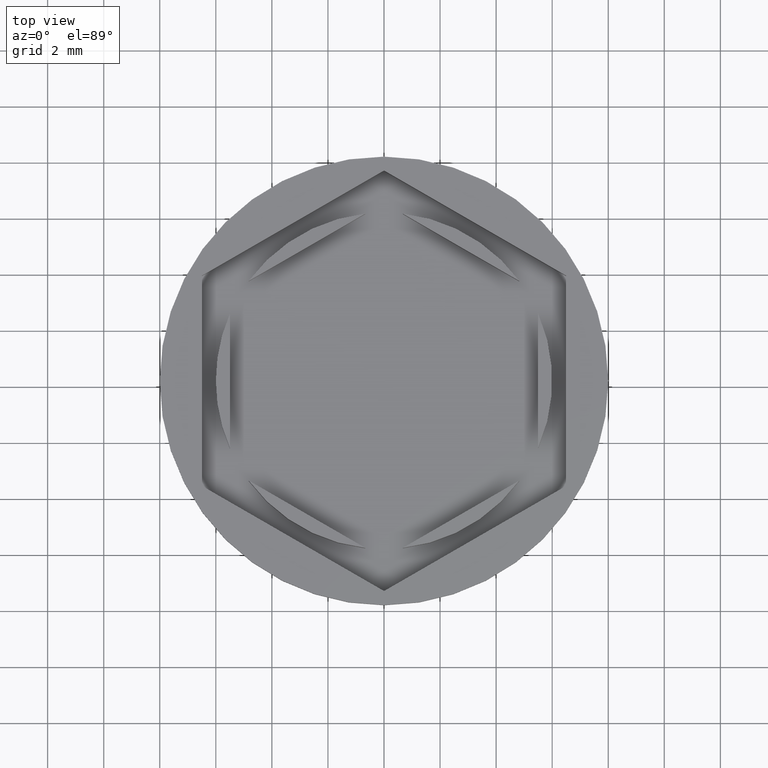
[diagram: clean part render]
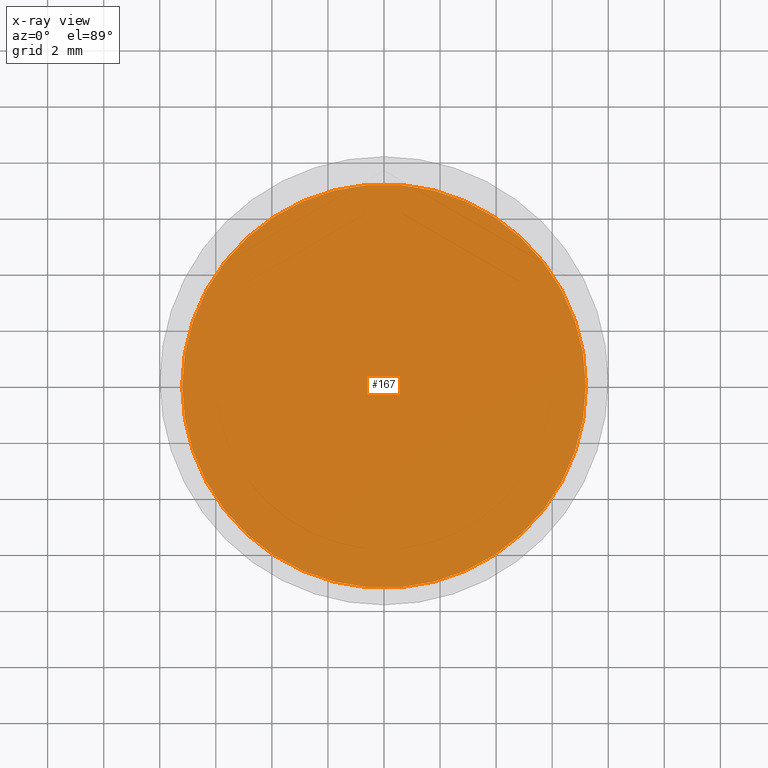
[diagram: x-ray — body ghosted, one internal face saturated and labeled with its STEP entity id]
A machine part, top view, then the same camera in x-ray: the body is ghosted and one INTERNAL B-rep face — a face not visible from any outside direction — is saturated and labeled: STEP entity #167.
In plain terms, the highlighted planar face has unit normal (0, 0, -1).
Its self-contained STEP definition (entity closure, byte-faithful):
#53 = DIRECTION ( 'NONE',  ( -1.000000000000000000, 0.000000000000000000, 0.000000000000000000 ) ) ;
#167 = ADVANCED_FACE ( 'NONE', ( #1053 ), #458, .F. ) ;
#458 = PLANE ( 'NONE',  #520 ) ;
#478 = EDGE_CURVE ( 'NONE', #1069, #1618, #1946, .T. ) ;
#494 = DIRECTION ( 'NONE',  ( -1.000000000000000000, 0.000000000000000000, 0.000000000000000000 ) ) ;
#520 = AXIS2_PLACEMENT_3D ( 'NONE', #1513, #884, #1329 ) ;
#553 = CARTESIAN_POINT ( 'NONE',  ( 7.200000000000001954, 9.001153973733047589E-16, -11.00000000000000000 ) ) ;
#699 = AXIS2_PLACEMENT_3D ( 'NONE', #1548, #775, #494 ) ;
#775 = DIRECTION ( 'NONE',  ( -0.000000000000000000, -0.000000000000000000, 1.000000000000000000 ) ) ;
#884 = DIRECTION ( 'NONE',  ( 0.000000000000000000, 0.000000000000000000, -1.000000000000000000 ) ) ;
#931 = EDGE_CURVE ( 'NONE', #1618, #1069, #1362, .T. ) ;
#995 = ORIENTED_EDGE ( 'NONE', *, *, #478, .T. ) ;
#1053 = FACE_OUTER_BOUND ( 'NONE', #1603, .T. ) ;
#1069 = VERTEX_POINT ( 'NONE', #553 ) ;
#1117 = CARTESIAN_POINT ( 'NONE',  ( -7.200000000000001954, 0.000000000000000000, -11.00000000000000000 ) ) ;
#1329 = DIRECTION ( 'NONE',  ( -1.000000000000000000, 0.000000000000000000, -0.000000000000000000 ) ) ;
#1362 = CIRCLE ( 'NONE', #699, 7.200000000000001954 ) ;
#1428 = DIRECTION ( 'NONE',  ( -0.000000000000000000, -0.000000000000000000, 1.000000000000000000 ) ) ;
#1513 = CARTESIAN_POINT ( 'NONE',  ( 0.000000000000000000, 0.000000000000000000, -11.00000000000000000 ) ) ;
#1548 = CARTESIAN_POINT ( 'NONE',  ( 0.000000000000000000, 0.000000000000000000, -11.00000000000000000 ) ) ;
#1603 = EDGE_LOOP ( 'NONE', ( #1671, #995 ) ) ;
#1618 = VERTEX_POINT ( 'NONE', #1117 ) ;
#1671 = ORIENTED_EDGE ( 'NONE', *, *, #931, .T. ) ;
#1739 = CARTESIAN_POINT ( 'NONE',  ( 0.000000000000000000, 0.000000000000000000, -11.00000000000000000 ) ) ;
#1743 = AXIS2_PLACEMENT_3D ( 'NONE', #1739, #1428, #53 ) ;
#1946 = CIRCLE ( 'NONE', #1743, 7.200000000000001954 ) ;